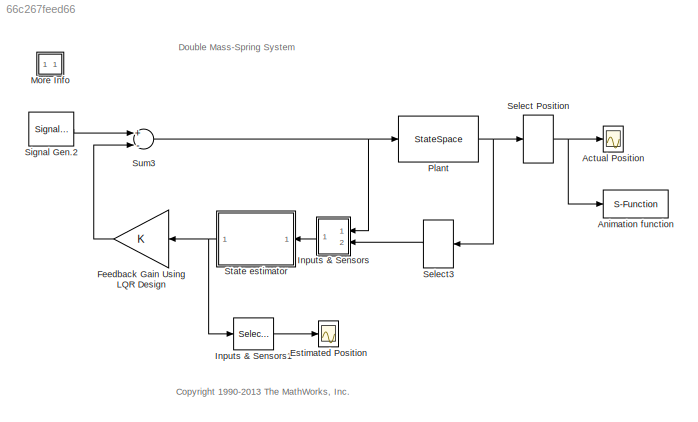
MODEL slx_66c267feed66
KIND model
CONFIG AbsTol = 1e-6
CONFIG EnableMultiTasking = off
CONFIG FixedStep = auto
CONFIG MaxStep = 0.1
CONFIG MinStep = auto
CONFIG PostLoadFcn = crtanim2([],[],[],0,1);
CONFIG RelTol = 1e-3
CONFIG SampleTimeConstraint = Unconstrained
CONFIG Solver = ode23
CONFIG SolverName = ode23
CONFIG StartTime = 0
CONFIG StopTime = 250
WORKSPACE source: mxarray member
WORKSPACE K = [3.08189689488 2.48269889228 0.0803807652926 3.18658131281]
WORKSPACE ae = [0 -1 0 1 1 0 0 0 -31.4507297013 44.8536687603 -46.6599405981 -89.5750283103 ... (16 elements, 4x4)]
WORKSPACE be = [0 1 0 0 31.4507297013 -43.8536687603 46.6599405981 88.5750283103]
WORKSPACE ce = [1 0 0 0 0 1 0 0 0 0 1 0 ... (16 elements, 4x4)]
WORKSPACE de = [0 0 0 0 0 0 0 0]
WORKSPACE ka = 1
WORKSPACE m1 = 1
WORKSPACE m2 = 1
WORKSPACE xBx1 = [0 0 -2 -2 0]
WORKSPACE xBx2 = [0 2 2 0 0]
WORKSPACE xSpr = [0 0.4 0.8 1.6 2.4 3.2 3.6 4]
BLOCK [Scope] Actual Position
  Floating = off
  NumInputPorts = 1
  Ports = [1]
  ScopeSpecificationString = Simulink.scopes.TimeScopeBlockCfg('CurrentConfiguration', extmgr.ConfigurationSet(extmgr.Configuration('Core','General UI',true),extmgr.Configuration('Core','Source UI',true),extmgr.Configuration('Sources','WiredSimulink',true,'DataLoggingLimitDataPoints',true,'DataLoggingSaveFormat','Array','DataLoggingDecimation','1','DataLoggingDecimateData',true),extmgr.Configuration('Visuals','Time Domain',tr...<+1743ch>
BLOCK [S-Function] Animation function
  DeleteFcn = shh = get(0,'ShowHiddenHandles');set(0,'ShowHiddenHandles','on');if ~isempty(findobj('type','figure','name','dblcart1 Animation'));close('dblcart1 Animation'); end;set(0,'ShowHiddenHandles',shh);
  EnableBusSupport = off
  FunctionName = crtanim2
  Parameters = 0.1
  Ports = [1]
  SFcnIsStateOwnerBlock = off
  SFunctionDeploymentMode = off
BLOCK [Scope] Estimated Position
  Floating = off
  NumInputPorts = 1
  Ports = [1]
  ScopeSpecificationString = Simulink.scopes.TimeScopeBlockCfg('CurrentConfiguration', extmgr.ConfigurationSet(extmgr.Configuration('Core','General UI',true),extmgr.Configuration('Core','Source UI',true),extmgr.Configuration('Sources','WiredSimulink',true,'DataLoggingLimitDataPoints',true,'DataLoggingSaveFormat','Array','DataLoggingDecimation','1','DataLoggingDecimateData',true),extmgr.Configuration('Visuals','Time Domain',tr...<+1748ch>
BLOCK [Gain] Feedback Gain Using LQR Design
  Gain = K
  Multiplication = Matrix(K*u) (u vector)
  OutDataTypeStr = Inherit: Inherit via internal rule
  ParamDataTypeStr = Inherit: Inherit via internal rule
  SaturateOnIntegerOverflow = off
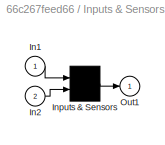
BLOCK [SubSystem] Inputs & Sensors
  Ports = [2, 1]
  RequestExecContextInheritance = off
BLOCK [Inport] Inputs & Sensors/In1
  IconDisplay = Port number
BLOCK [Inport] Inputs & Sensors/In2
  IconDisplay = Port number
  Port = 2
BLOCK [Mux] Inputs & Sensors/Inputs & Sensors
  Inputs = 2
  Ports = [2, 1]
BLOCK [Outport] Inputs & Sensors/Out1
  IconDisplay = Port number
  InitialOutput = 0
  VectorParamsAs1DForOutWhenUnconnected = off
BLOCK [Selector] Inputs & Sensors1
  IndexOptions = Index vector (dialog)
  Indices = [1 2]
  InputPortWidth = 4
  OutputSizes = 1
  Ports = [1, 1]
BLOCK [SubSystem] More Info
  OpenFcn = showExample('simulink_general/sldemo_dblcart1Example')
  Ports = []
  RequestExecContextInheritance = off
BLOCK [StateSpace] Plant
  A = [0 1 0 0; -ka/m1 0 ka/m1 0; 0 0 0 1;ka/m2 0 -ka/m2 0]
  B = [0; 1; 0; 0]
  C = [1 0 0 0;0 0 1 0;0 0 1 0]
  D = zeros(3,1)
  InitialCondition = 0
  Ports = [1, 1]
BLOCK [Selector] Select Position
  IndexOptions = Index vector (dialog)
  Indices = [1,3]
  InputPortWidth = 3
  OutputSizes = 1
  Ports = [1, 1]
BLOCK [Selector] Select3
  IndexOptions = Index vector (dialog)
  Indices = 3
  InputPortWidth = 3
  OutputSizes = 1
  Ports = [1, 1]
BLOCK [SignalGenerator] Signal Gen.2
  Amplitude = 15
  Frequency = 0.300000
  Ports = [0, 1]
  Units = rad/sec
  WaveForm = square
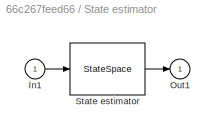
BLOCK [SubSystem] State estimator
  Ports = [1, 1]
  RequestExecContextInheritance = off
BLOCK [Inport] State estimator/In1
  IconDisplay = Port number
BLOCK [Outport] State estimator/Out1
  IconDisplay = Port number
  InitialOutput = 0
  VectorParamsAs1DForOutWhenUnconnected = off
BLOCK [StateSpace] State estimator/State estimator
  A = ae
  B = be
  C = ce
  D = de
  InitialCondition = 0
  Ports = [1, 1]
BLOCK [Sum] Sum3
  Inputs = +-
  Ports = [2, 1]
ANNOTATION (root): <copyright redacted>
ANNOTATION (root): Double Mass-Spring System
LINE Feedback Gain Using LQR Design:1 -> Sum3:2
LINE Inputs & Sensors/In1:1 -> Inputs & Sensors/Inputs & Sensors:1
LINE Inputs & Sensors/In2:1 -> Inputs & Sensors/Inputs & Sensors:2
LINE Inputs & Sensors/Inputs & Sensors:1 -> Inputs & Sensors/Out1:1
LINE Inputs & Sensors1:1 -> Estimated Position:1
LINE Inputs & Sensors:1 -> State estimator:1
NET Plant:1 -> Select Position:1, Select3:1
NET Select Position:1 -> Actual Position:1, Animation function:1
LINE Select3:1 -> Inputs & Sensors:2
LINE Signal Gen.2:1 -> Sum3:1
LINE State estimator/In1:1 -> State estimator/State estimator:1
LINE State estimator/State estimator:1 -> State estimator/Out1:1
NET State estimator:1 -> Feedback Gain Using LQR Design:1, Inputs & Sensors1:1
NET Sum3:1 -> Inputs & Sensors:1, Plant:1
note: NET lines group one-source signal fan-out (src -> all destinations, sorted); 1:1 wires keep LINE
